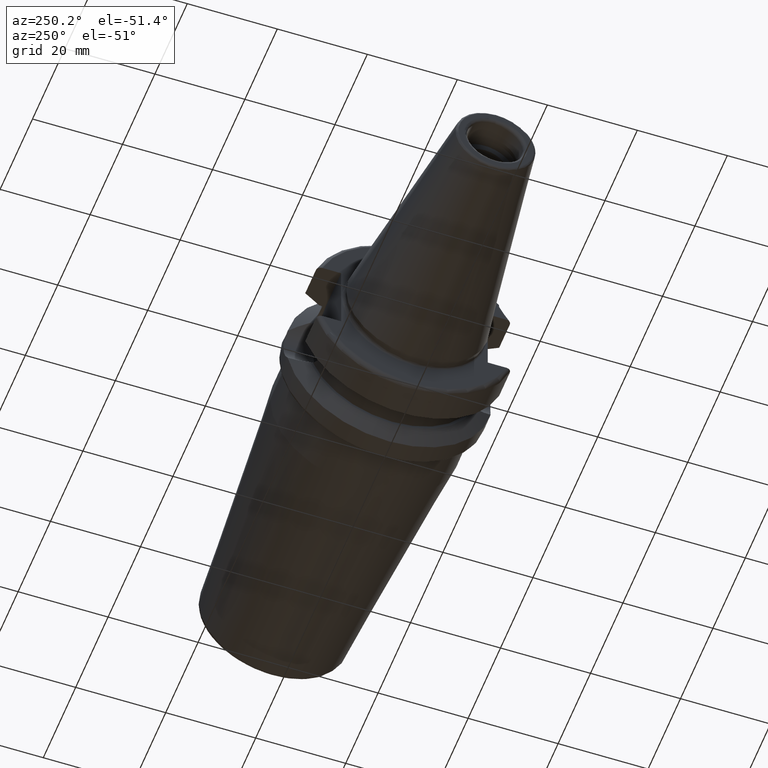
[diagram: clean part render]
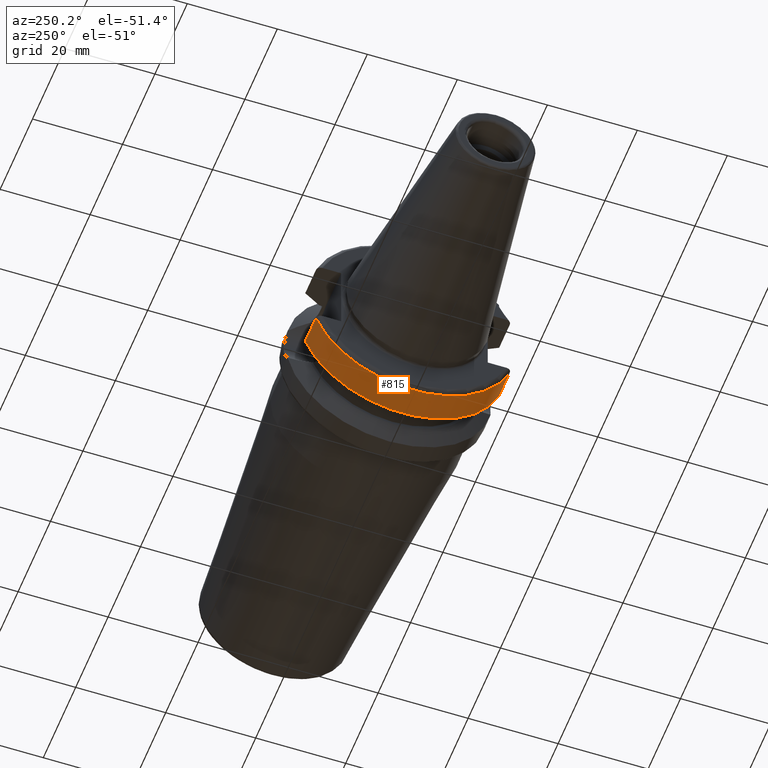
[diagram: same view with one face highlighted and labeled with its STEP entity id]
A machine part, auxiliary view. The second image highlights one B-rep face of the part: STEP entity #815.
In plain terms, the highlighted cylindrical surface (partial cylindrical patch) has radius 23 mm, axis along (1, 0, 0).
Its self-contained STEP definition (entity closure, byte-faithful):
#79=CYLINDRICAL_SURFACE('',#920,23.);
#110=FACE_OUTER_BOUND('',#164,.T.);
#164=EDGE_LOOP('',(#654,#655,#656,#657));
#211=LINE('',#1407,#251);
#216=LINE('',#1470,#256);
#251=VECTOR('',#1074,10.);
#256=VECTOR('',#1115,10.);
#304=CIRCLE('',#919,23.);
#305=CIRCLE('',#921,23.);
#371=VERTEX_POINT('',#1388);
#374=VERTEX_POINT('',#1396);
#383=VERTEX_POINT('',#1457);
#385=VERTEX_POINT('',#1468);
#466=EDGE_CURVE('',#371,#374,#211,.T.);
#482=EDGE_CURVE('',#371,#383,#304,.T.);
#485=EDGE_CURVE('',#374,#385,#305,.T.);
#486=EDGE_CURVE('',#385,#383,#216,.T.);
#654=ORIENTED_EDGE('',*,*,#466,.T.);
#655=ORIENTED_EDGE('',*,*,#485,.T.);
#656=ORIENTED_EDGE('',*,*,#486,.T.);
#657=ORIENTED_EDGE('',*,*,#482,.F.);
#815=ADVANCED_FACE('',(#110),#79,.T.);
#919=AXIS2_PLACEMENT_3D('',#1458,#1109,#1110);
#920=AXIS2_PLACEMENT_3D('',#1467,#1111,#1112);
#921=AXIS2_PLACEMENT_3D('',#1469,#1113,#1114);
#1074=DIRECTION('',(-1.,-1.62798202122572E-21,0.));
#1109=DIRECTION('center_axis',(1.,1.62798202122572E-21,0.));
#1110=DIRECTION('ref_axis',(0.,0.,-1.));
#1111=DIRECTION('center_axis',(1.,1.62798202122572E-21,0.));
#1112=DIRECTION('ref_axis',(0.,1.,0.));
#1113=DIRECTION('center_axis',(1.,1.62798202122572E-21,0.));
#1114=DIRECTION('ref_axis',(0.,0.,-1.));
#1115=DIRECTION('',(1.,1.62798202122572E-21,0.));
#1388=CARTESIAN_POINT('',(9.57005904049381,-21.5452430944744,-8.05));
#1396=CARTESIAN_POINT('',(2.99999999999999,-21.5452430944745,-8.05));
#1407=CARTESIAN_POINT('',(6.2850295202469,-21.5452430944745,-8.05));
#1457=CARTESIAN_POINT('',(9.57005904049381,21.5452430944744,-8.05));
#1458=CARTESIAN_POINT('Origin',(9.57005904049381,2.08175114951191E-15,0.));
#1467=CARTESIAN_POINT('Origin',(6.2850295202469,2.08174580154291E-15,0.));
#1468=CARTESIAN_POINT('',(2.99999999999999,21.5452430944745,-8.05));
#1469=CARTESIAN_POINT('Origin',(2.99999999999999,2.08174045357391E-15,0.));
#1470=CARTESIAN_POINT('',(6.2850295202469,21.5452430944745,-8.05));